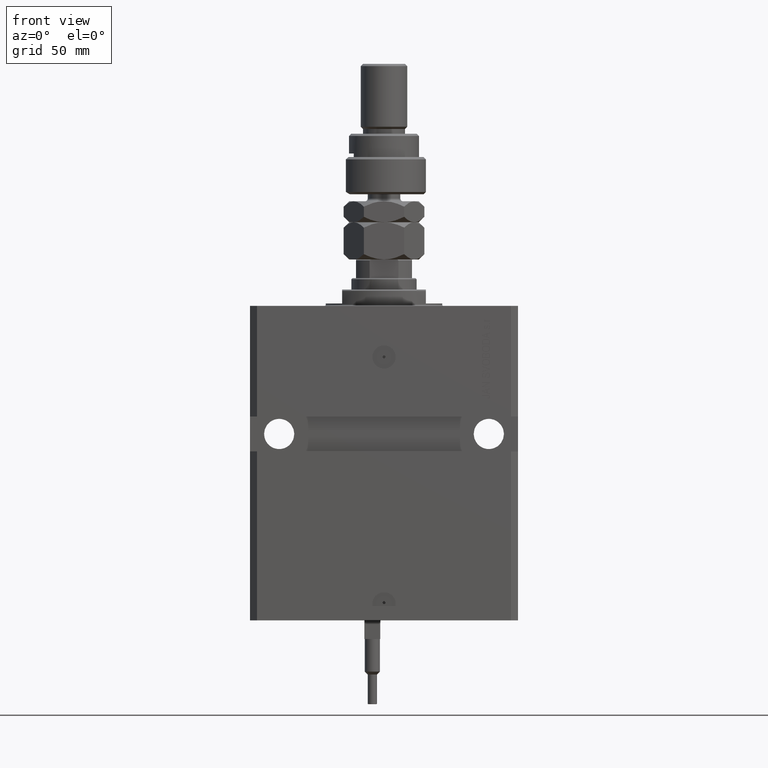
[diagram: clean part render]
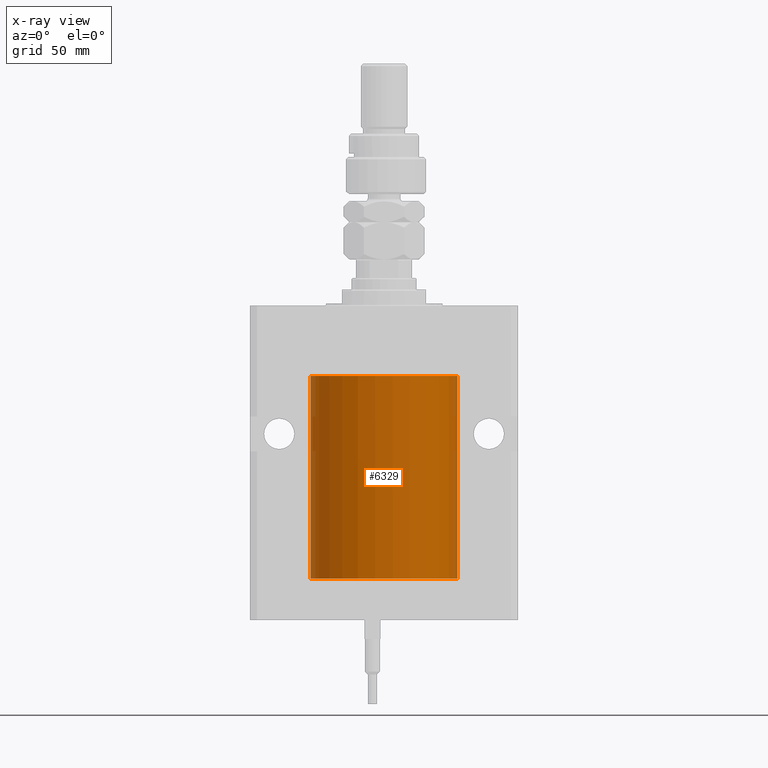
[diagram: x-ray — body ghosted, one internal face saturated and labeled with its STEP entity id]
A machine part, front view, then the same camera in x-ray: the body is ghosted and one INTERNAL B-rep face — a face not visible from any outside direction — is saturated and labeled: STEP entity #6329.
In plain terms, the highlighted cylindrical surface (partial cylindrical patch) has radius 31.5 mm, axis along (0, 0, 1).
Its self-contained STEP definition (entity closure, byte-faithful):
#169 = LINE ( 'NONE', #16841, #45343 ) ;
#463 = ORIENTED_EDGE ( 'NONE', *, *, #49992, .F. ) ;
#698 = DIRECTION ( 'NONE',  ( -0.000000000000000000, -0.000000000000000000, 1.000000000000000000 ) ) ;
#1389 = CARTESIAN_POINT ( 'NONE',  ( -31.50000000000000000, 3.857637417314162689E-15, -117.0999999999999943 ) ) ;
#1657 = ORIENTED_EDGE ( 'NONE', *, *, #33549, .T. ) ;
#1919 = CARTESIAN_POINT ( 'NONE',  ( 31.49528358446202603, -0.5571510427948113131, -113.6732007340060449 ) ) ;
#3050 = ORIENTED_EDGE ( 'NONE', *, *, #19687, .F. ) ;
#3791 = EDGE_CURVE ( 'NONE', #44827, #6813, #9072, .T. ) ;
#4974 = ORIENTED_EDGE ( 'NONE', *, *, #18966, .T. ) ;
#5891 = EDGE_LOOP ( 'NONE', ( #3050, #15608, #33360, #25087, #1657, #4974, #463 ) ) ;
#6329 = ADVANCED_FACE ( 'NONE', ( #37029 ), #16665, .F. ) ;
#6435 = CARTESIAN_POINT ( 'NONE',  ( 31.49527967292564057, -0.5573624224366642288, -114.3264531259596168 ) ) ;
#6546 = DIRECTION ( 'NONE',  ( -0.000000000000000000, -0.000000000000000000, 1.000000000000000000 ) ) ;
#6806 = CARTESIAN_POINT ( 'NONE',  ( 31.50000000000000000, 0.000000000000000000, -117.0999999999999943 ) ) ;
#6813 = VERTEX_POINT ( 'NONE', #37011 ) ;
#7099 = EDGE_CURVE ( 'NONE', #38499, #28200, #169, .T. ) ;
#7363 = DIRECTION ( 'NONE',  ( 0.000000000000000000, 0.000000000000000000, 1.000000000000000000 ) ) ;
#7917 = AXIS2_PLACEMENT_3D ( 'NONE', #34904, #7363, #43092 ) ;
#8290 = CARTESIAN_POINT ( 'NONE',  ( 31.50000000000006395, 3.442404755096224483E-13, -113.3749999999967741 ) ) ;
#9072 = LINE ( 'NONE', #1389, #42821 ) ;
#9870 = AXIS2_PLACEMENT_3D ( 'NONE', #37803, #24882, #33841 ) ;
#10956 = B_SPLINE_CURVE_WITH_KNOTS ( 'NONE', 3,
 ( #29473, #45583, #21541, #1919, #45327, #37652 ),
 .UNSPECIFIED., .F., .F.,
 ( 4, 2, 4 ),
 ( 0.001954083649707730446, 0.002442753259884901558, 0.002931422870062072236 ),
 .UNSPECIFIED. ) ;
#11520 = VERTEX_POINT ( 'NONE', #27903 ) ;
#12980 = VECTOR ( 'NONE', #6546, 1000.000000000000000 ) ;
#13603 = CARTESIAN_POINT ( 'NONE',  ( 31.49851597466318864, -0.3267811800504749065, -114.5571701479423297 ) ) ;
#13822 = DIRECTION ( 'NONE',  ( -0.000000000000000000, -0.000000000000000000, 1.000000000000000000 ) ) ;
#15608 = ORIENTED_EDGE ( 'NONE', *, *, #3791, .T. ) ;
#16665 = CYLINDRICAL_SURFACE ( 'NONE', #9870, 31.50000000000000000 ) ;
#16841 = CARTESIAN_POINT ( 'NONE',  ( 31.50000000000000000, 0.000000000000000000, -117.0999999999999943 ) ) ;
#16952 = VERTEX_POINT ( 'NONE', #51030 ) ;
#18966 = EDGE_CURVE ( 'NONE', #16952, #11520, #20559, .T. ) ;
#19687 = EDGE_CURVE ( 'NONE', #44827, #51750, #44251, .T. ) ;
#20559 = B_SPLINE_CURVE_WITH_KNOTS ( 'NONE', 3,
 ( #32437, #48546, #6435, #13603, #30016, #22616 ),
 .UNSPECIFIED., .F., .F.,
 ( 4, 2, 4 ),
 ( 0.002931422870062072236, 0.003419574257808113277, 0.003907725645554154317 ),
 .UNSPECIFIED. ) ;
#21541 = CARTESIAN_POINT ( 'NONE',  ( 31.49851930977805381, -0.3264760966898029859, -113.4426595268314770 ) ) ;
#22616 = CARTESIAN_POINT ( 'NONE',  ( 31.50000000000000000, -2.492939093807799249E-15, -114.6250000000000000 ) ) ;
#23526 = EDGE_CURVE ( 'NONE', #6813, #28200, #24974, .T. ) ;
#24882 = DIRECTION ( 'NONE',  ( -0.000000000000000000, -0.000000000000000000, 1.000000000000000000 ) ) ;
#24974 = CIRCLE ( 'NONE', #49446, 31.50000000000000000 ) ;
#25087 = ORIENTED_EDGE ( 'NONE', *, *, #7099, .F. ) ;
#27903 = CARTESIAN_POINT ( 'NONE',  ( 31.50000000000000000, -2.492939093807799249E-15, -114.6250000000000000 ) ) ;
#28200 = VERTEX_POINT ( 'NONE', #35881 ) ;
#29473 = CARTESIAN_POINT ( 'NONE',  ( 31.50000000000006395, 3.442404755096224483E-13, -113.3749999999967741 ) ) ;
#30016 = CARTESIAN_POINT ( 'NONE',  ( 31.50000000000000000, -0.1650602271992127057, -114.6250000000000142 ) ) ;
#31565 = CARTESIAN_POINT ( 'NONE',  ( 0.000000000000000000, 0.000000000000000000, -30.10000000000000142 ) ) ;
#32437 = CARTESIAN_POINT ( 'NONE',  ( 31.49379899281761652, -0.6250000000000288658, -114.0000000000000000 ) ) ;
#33360 = ORIENTED_EDGE ( 'NONE', *, *, #23526, .T. ) ;
#33549 = EDGE_CURVE ( 'NONE', #38499, #16952, #10956, .T. ) ;
#33841 = DIRECTION ( 'NONE',  ( 1.000000000000000000, 0.000000000000000000, 0.000000000000000000 ) ) ;
#34477 = CARTESIAN_POINT ( 'NONE',  ( -31.50000000000000000, 3.857637417314162689E-15, -117.0999999999999943 ) ) ;
#34904 = CARTESIAN_POINT ( 'NONE',  ( 0.000000000000000000, 0.000000000000000000, -117.0999999999999943 ) ) ;
#35881 = CARTESIAN_POINT ( 'NONE',  ( 31.50000000000000000, 0.000000000000000000, -30.10000000000000142 ) ) ;
#37011 = CARTESIAN_POINT ( 'NONE',  ( -31.50000000000000000, 3.857637417314162689E-15, -30.10000000000000142 ) ) ;
#37029 = FACE_OUTER_BOUND ( 'NONE', #5891, .T. ) ;
#37652 = CARTESIAN_POINT ( 'NONE',  ( 31.49379899281761652, -0.6250000000000288658, -114.0000000000000000 ) ) ;
#37803 = CARTESIAN_POINT ( 'NONE',  ( 0.000000000000000000, 0.000000000000000000, -117.0999999999999943 ) ) ;
#38499 = VERTEX_POINT ( 'NONE', #8290 ) ;
#42821 = VECTOR ( 'NONE', #13822, 1000.000000000000000 ) ;
#43092 = DIRECTION ( 'NONE',  ( 1.000000000000000000, 0.000000000000000000, 0.000000000000000000 ) ) ;
#44251 = CIRCLE ( 'NONE', #7917, 31.50000000000000000 ) ;
#44501 = CARTESIAN_POINT ( 'NONE',  ( 31.50000000000000000, 0.000000000000000000, -117.0999999999999943 ) ) ;
#44827 = VERTEX_POINT ( 'NONE', #34477 ) ;
#45327 = CARTESIAN_POINT ( 'NONE',  ( 31.49379899281761652, -0.6250000000000287548, -113.8350496352847756 ) ) ;
#45343 = VECTOR ( 'NONE', #698, 1000.000000000000000 ) ;
#45583 = CARTESIAN_POINT ( 'NONE',  ( 31.50000000000000000, -0.1632157801386601437, -113.3749999999998579 ) ) ;
#46503 = LINE ( 'NONE', #6806, #12980 ) ;
#47680 = DIRECTION ( 'NONE',  ( 0.000000000000000000, 0.000000000000000000, 1.000000000000000000 ) ) ;
#48546 = CARTESIAN_POINT ( 'NONE',  ( 31.49379899281760942, -0.6250000000000288658, -114.1647754387995661 ) ) ;
#49446 = AXIS2_PLACEMENT_3D ( 'NONE', #31565, #47680, #51389 ) ;
#49992 = EDGE_CURVE ( 'NONE', #51750, #11520, #46503, .T. ) ;
#51030 = CARTESIAN_POINT ( 'NONE',  ( 31.49379899281761652, -0.6250000000000288658, -114.0000000000000000 ) ) ;
#51389 = DIRECTION ( 'NONE',  ( 1.000000000000000000, 0.000000000000000000, 0.000000000000000000 ) ) ;
#51750 = VERTEX_POINT ( 'NONE', #44501 ) ;